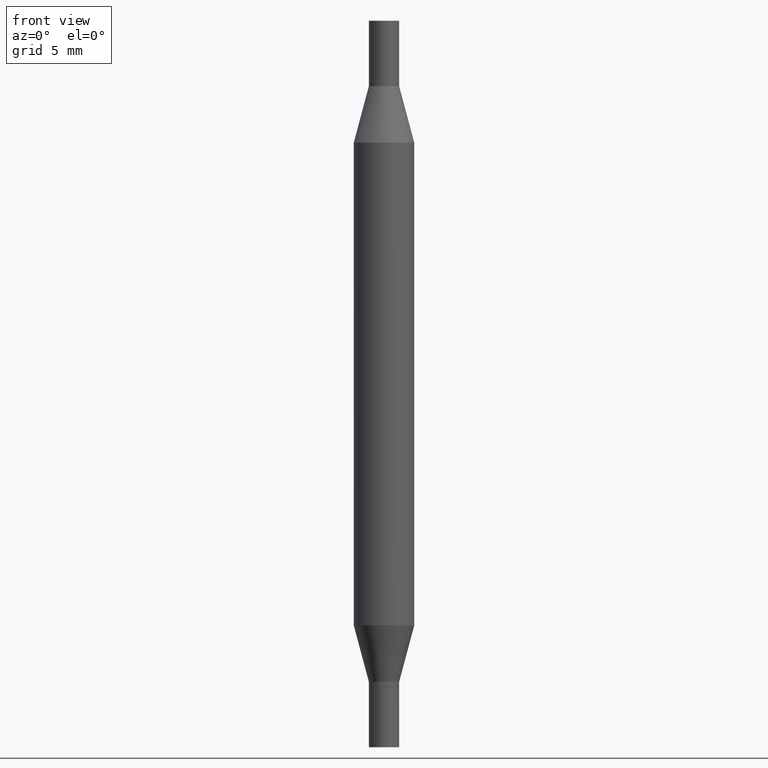
[diagram: clean part render]
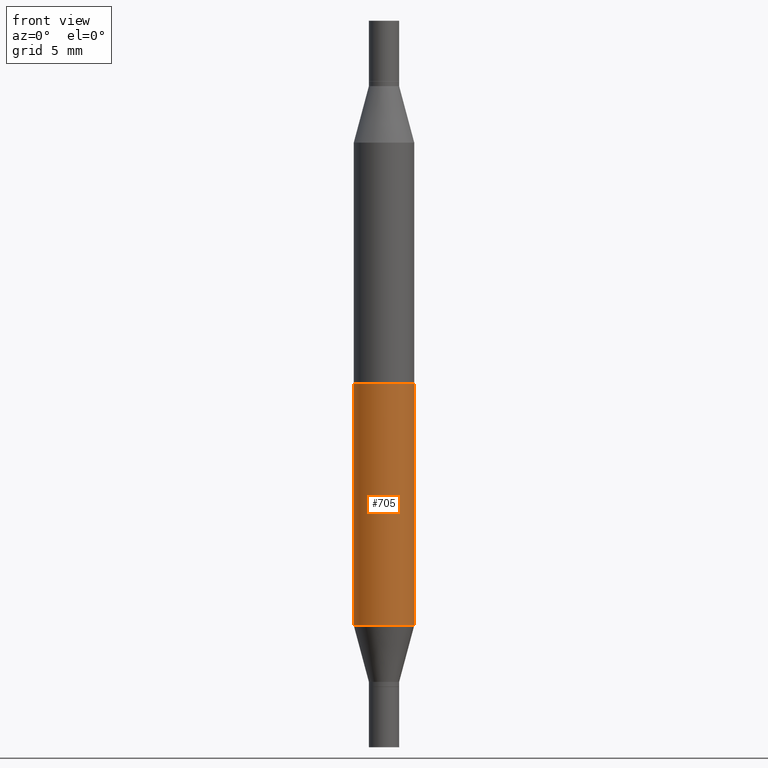
[diagram: same view with one face highlighted and labeled with its STEP entity id]
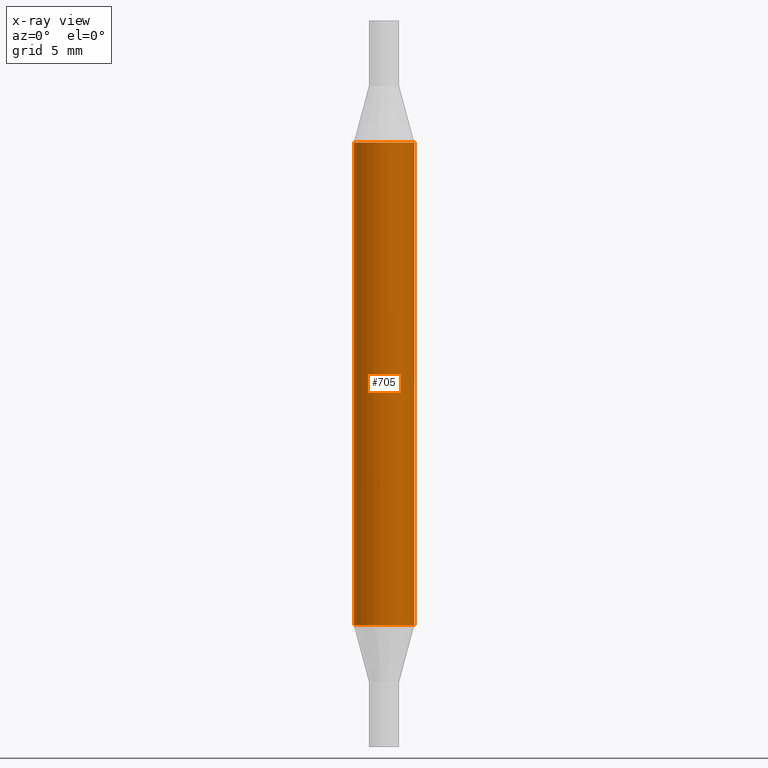
[diagram: x-ray of the same camera — body ghosted, the highlighted face saturated]
A machine part, front view. The second image highlights one B-rep face of the part: STEP entity #705.
The next image is the same camera in x-ray: the body ghosted, the highlighted face saturated — about 0% of this face is hidden behind the body in this view.
In plain terms, the highlighted cylindrical surface (edge-blend (fillet) strip) has radius 1.5875 mm, axis along (-0, -0, -1).
Its self-contained STEP definition (entity closure, byte-faithful):
#2 = CARTESIAN_POINT ( 'NONE',  ( 3.052858238161216211E-29, -4.358672472825851059E-15, -1.248373412263471316 ) ) ;
#33 = VERTEX_POINT ( 'NONE', #153 ) ;
#70 = EDGE_CURVE ( 'NONE', #257, #100, #103, .T. ) ;
#89 = VERTEX_POINT ( 'NONE', #573 ) ;
#97 = CYLINDRICAL_SURFACE ( 'NONE', #128, 0.06250000000000000000 ) ;
#100 = VERTEX_POINT ( 'NONE', #951 ) ;
#103 = CIRCLE ( 'NONE', #970, 0.06250000000000000000 ) ;
#104 = EDGE_LOOP ( 'NONE', ( #534, #600, #835, #760 ) ) ;
#128 = AXIS2_PLACEMENT_3D ( 'NONE', #473, #714, #418 ) ;
#153 = CARTESIAN_POINT ( 'NONE',  ( 0.06250000000000000000, -4.795107640181242728E-15, -1.248373412263471316 ) ) ;
#204 = VECTOR ( 'NONE', #521, 39.37007874015748143 ) ;
#213 = LINE ( 'NONE', #810, #204 ) ;
#242 = EDGE_CURVE ( 'NONE', #100, #33, #657, .T. ) ;
#257 = VERTEX_POINT ( 'NONE', #803 ) ;
#418 = DIRECTION ( 'NONE',  ( 1.000000000000000000, -6.982962677686262766E-15, 0.000000000000000000 ) ) ;
#459 = CARTESIAN_POINT ( 'NONE',  ( 3.052858238161216211E-29, -8.783881839976099214E-16, -0.2516265877365289061 ) ) ;
#473 = CARTESIAN_POINT ( 'NONE',  ( 0.000000000000000000, -5.237464825353202639E-15, -1.500000000000000222 ) ) ;
#521 = DIRECTION ( 'NONE',  ( -2.445468806185136877E-29, -3.491805094961123683E-15, -1.000000000000000000 ) ) ;
#534 = ORIENTED_EDGE ( 'NONE', *, *, #70, .F. ) ;
#573 = CARTESIAN_POINT ( 'NONE',  ( -0.06250000000000000000, -2.189829879271638760E-15, -1.248373412263471316 ) ) ;
#582 = VECTOR ( 'NONE', #652, 39.37007874015748143 ) ;
#587 = CIRCLE ( 'NONE', #707, 0.06250000000000000000 ) ;
#600 = ORIENTED_EDGE ( 'NONE', *, *, #883, .T. ) ;
#652 = DIRECTION ( 'NONE',  ( -2.445468806185136877E-29, -3.491805094961123683E-15, -1.000000000000000000 ) ) ;
#657 = LINE ( 'NONE', #727, #582 ) ;
#705 = ADVANCED_FACE ( 'NONE', ( #850 ), #97, .T. ) ;
#707 = AXIS2_PLACEMENT_3D ( 'NONE', #2, #975, #731 ) ;
#714 = DIRECTION ( 'NONE',  ( -2.445468806185136597E-29, -3.491805094961124077E-15, -1.000000000000000000 ) ) ;
#727 = CARTESIAN_POINT ( 'NONE',  ( 0.06250000000000000000, -5.673899992708594309E-15, -1.500000000000000222 ) ) ;
#731 = DIRECTION ( 'NONE',  ( 1.000000000000000000, -6.982962677686270655E-15, 0.000000000000000000 ) ) ;
#760 = ORIENTED_EDGE ( 'NONE', *, *, #242, .F. ) ;
#803 = CARTESIAN_POINT ( 'NONE',  ( -0.06250000000000000000, -4.496070591368893960E-16, -0.2516265877365289061 ) ) ;
#810 = CARTESIAN_POINT ( 'NONE',  ( -0.06250000000000000000, -4.808683700492481917E-15, -1.500000000000000222 ) ) ;
#828 = DIRECTION ( 'NONE',  ( 1.000000000000000000, -6.982962677686266711E-15, 0.000000000000000000 ) ) ;
#835 = ORIENTED_EDGE ( 'NONE', *, *, #974, .T. ) ;
#850 = FACE_OUTER_BOUND ( 'NONE', #104, .T. ) ;
#883 = EDGE_CURVE ( 'NONE', #257, #89, #213, .T. ) ;
#922 = DIRECTION ( 'NONE',  ( 2.445468806185136597E-29, 3.491805094961124077E-15, 1.000000000000000000 ) ) ;
#951 = CARTESIAN_POINT ( 'NONE',  ( 0.06250000000000000000, -1.314823351353001887E-15, -0.2516265877365289061 ) ) ;
#970 = AXIS2_PLACEMENT_3D ( 'NONE', #459, #922, #828 ) ;
#974 = EDGE_CURVE ( 'NONE', #89, #33, #587, .T. ) ;
#975 = DIRECTION ( 'NONE',  ( -2.445468806185136597E-29, 3.491481338843145583E-15, 1.000000000000000000 ) ) ;